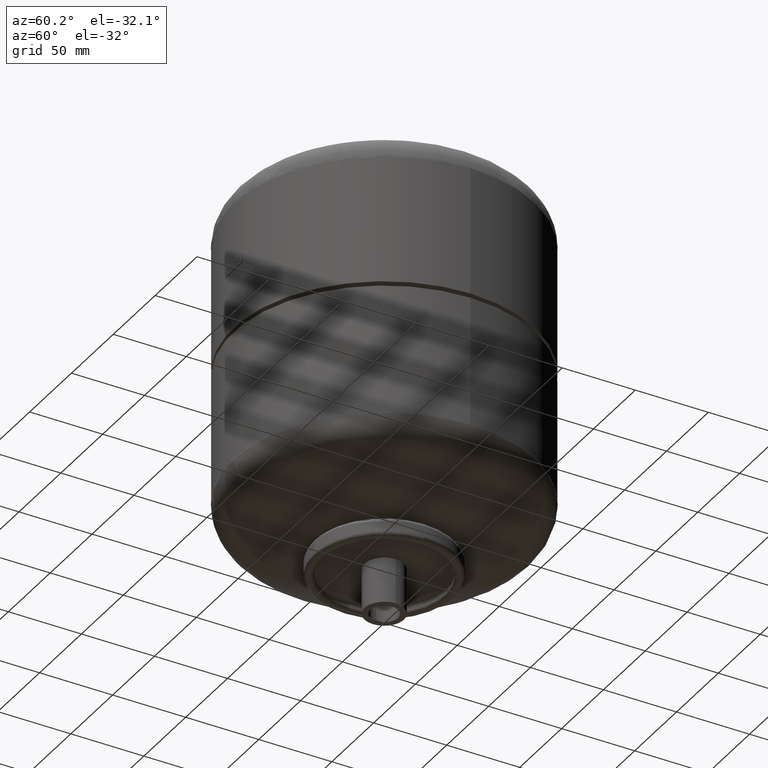
[diagram: clean part render]
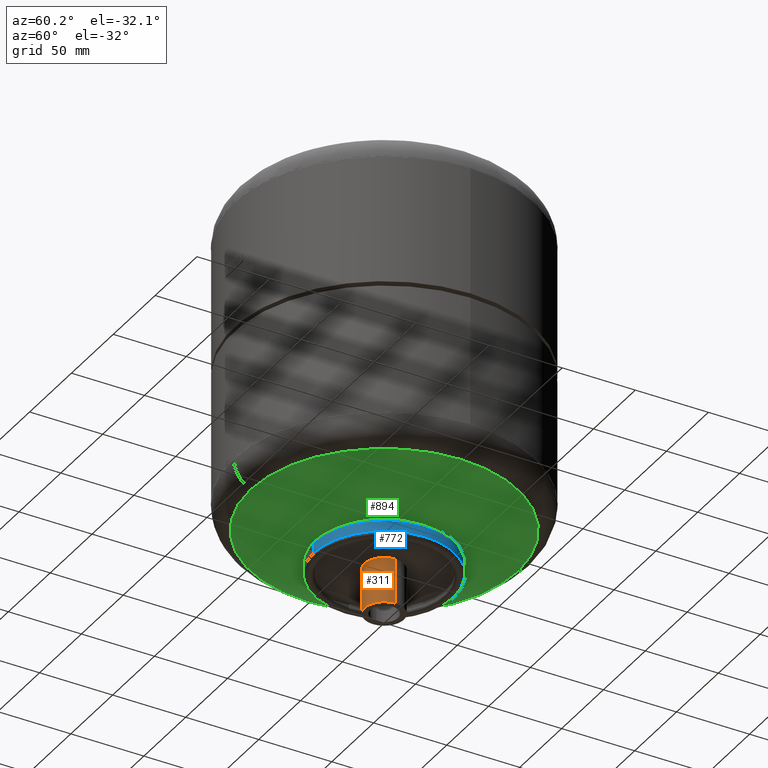
[diagram: same view with three faces highlighted in distinct colors, each labeled with its STEP entity id]
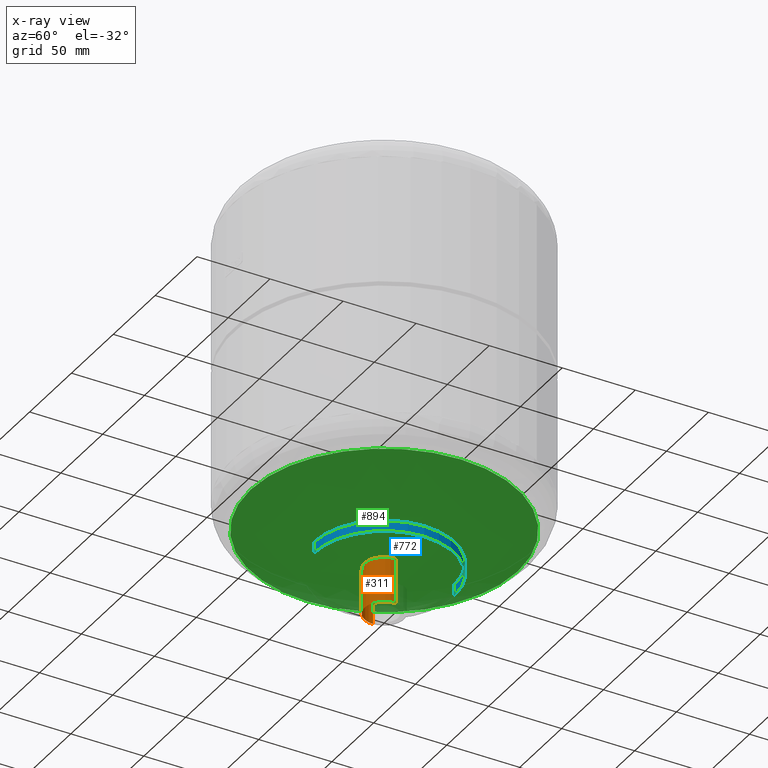
[diagram: x-ray of the same camera — body ghosted, the three highlighted faces saturated]
A machine part, auxiliary view with three faces highlighted in distinct colors.
The next image is the same camera in x-ray (body ghosted, the three faces saturated) — at least one of them is partly hidden behind the body in this view.
Their STEP definitions:

[orange] entity #311 — the highlighted cylindrical surface (edge-blend (fillet) strip) has radius 13.45 mm, axis along (0, 0, 1).
#270=CARTESIAN_POINT('',(0.0,0.0,0.0));
#271=DIRECTION('',(0.0,0.0,1.0));
#272=DIRECTION('',(1.0,0.0,0.0));
#273=AXIS2_PLACEMENT_3D('',#270,#271,#272);
#274=CYLINDRICAL_SURFACE('',#273,13.449999999999999);
#275=CARTESIAN_POINT('',(13.449999999999999,0.0,30.999999999999989));
#276=VERTEX_POINT('',#275);
#277=CARTESIAN_POINT('',(13.449999999999999,0.0,0.0));
#278=VERTEX_POINT('',#277);
#279=CARTESIAN_POINT('',(13.449999999999999,0.0,30.999999999999989));
#280=DIRECTION('',(0.0,0.0,-1.0));
#281=VECTOR('',#280,30.999999999999989);
#282=LINE('',#279,#281);
#283=EDGE_CURVE('',#276,#278,#282,.T.);
#284=ORIENTED_EDGE('',*,*,#283,.F.);
#285=CARTESIAN_POINT('',(-13.449999999999999,1.647096E-015,30.999999999999993));
#286=VERTEX_POINT('',#285);
#287=CARTESIAN_POINT('',(0.0,0.0,30.999999999999993));
#288=DIRECTION('',(0.0,0.0,-1.0));
#289=DIRECTION('',(1.0,0.0,0.0));
#290=AXIS2_PLACEMENT_3D('',#287,#288,#289);
#291=CIRCLE('',#290,13.449999999999999);
#292=EDGE_CURVE('',#276,#286,#291,.T.);
#293=ORIENTED_EDGE('',*,*,#292,.T.);
#294=CARTESIAN_POINT('',(-13.449999999999999,-1.647096E-015,0.0));
#295=VERTEX_POINT('',#294);
#296=CARTESIAN_POINT('',(-13.449999999999999,1.647096E-015,30.999999999999993));
#297=DIRECTION('',(0.0,0.0,-1.0));
#298=VECTOR('',#297,30.999999999999993);
#299=LINE('',#296,#298);
#300=EDGE_CURVE('',#286,#295,#299,.T.);
#301=ORIENTED_EDGE('',*,*,#300,.T.);
#302=CARTESIAN_POINT('',(0.0,0.0,0.0));
#303=DIRECTION('',(0.0,0.0,1.0));
#304=DIRECTION('',(1.0,0.0,0.0));
#305=AXIS2_PLACEMENT_3D('',#302,#303,#304);
#306=CIRCLE('',#305,13.449999999999999);
#307=EDGE_CURVE('',#295,#278,#306,.T.);
#308=ORIENTED_EDGE('',*,*,#307,.T.);
#309=EDGE_LOOP('',(#284,#293,#301,#308));
#310=FACE_OUTER_BOUND('',#309,.T.);
#311=ADVANCED_FACE('',(#310),#274,.T.);

[blue] entity #772 — the highlighted cylindrical surface (partial cylindrical patch) has radius 48 mm, axis along (0, -0, -1).
#130=CARTESIAN_POINT('',(0.0,48.0,27.999999999999993));
#131=VERTEX_POINT('',#130);
#132=CARTESIAN_POINT('',(0.0,48.0,35.000000000000007));
#133=VERTEX_POINT('',#132);
#134=CARTESIAN_POINT('',(0.0,48.0,27.999999999999993));
#135=DIRECTION('',(0.0,0.0,1.0));
#136=VECTOR('',#135,7.000000000000014);
#137=LINE('',#134,#136);
#138=EDGE_CURVE('',#131,#133,#137,.T.);
#149=CARTESIAN_POINT('',(-5.878110E-015,-48.000000000000007,28.0));
#150=VERTEX_POINT('',#149);
#158=CARTESIAN_POINT('',(-5.878110E-015,-48.000000000000007,35.000000000000014));
#159=VERTEX_POINT('',#158);
#160=CARTESIAN_POINT('',(-5.878110E-015,-48.000000000000007,28.0));
#161=DIRECTION('',(0.0,0.0,1.0));
#162=VECTOR('',#161,7.000000000000014);
#163=LINE('',#160,#162);
#164=EDGE_CURVE('',#150,#159,#163,.T.);
#242=CARTESIAN_POINT('',(48.000000000000007,-5.878110E-015,35.000000000000007));
#243=VERTEX_POINT('',#242);
#244=CARTESIAN_POINT('',(0.0,0.0,35.000000000000007));
#245=DIRECTION('',(0.0,0.0,-1.0));
#246=DIRECTION('',(0.0,1.0,0.0));
#247=AXIS2_PLACEMENT_3D('',#244,#245,#246);
#248=CIRCLE('',#247,48.000000000000007);
#249=EDGE_CURVE('',#243,#159,#248,.T.);
#483=CARTESIAN_POINT('',(48.000000000000007,-5.878110E-015,28.0));
#484=VERTEX_POINT('',#483);
#492=CARTESIAN_POINT('',(0.0,0.0,28.0));
#493=DIRECTION('',(0.0,0.0,-1.0));
#494=DIRECTION('',(0.0,1.0,0.0));
#495=AXIS2_PLACEMENT_3D('',#492,#493,#494);
#496=CIRCLE('',#495,48.000000000000007);
#497=EDGE_CURVE('',#484,#150,#496,.T.);
#553=CARTESIAN_POINT('',(0.0,0.0,28.0));
#554=DIRECTION('',(0.0,0.0,-1.0));
#555=DIRECTION('',(0.0,1.0,0.0));
#556=AXIS2_PLACEMENT_3D('',#553,#554,#555);
#557=CIRCLE('',#556,48.000000000000007);
#558=EDGE_CURVE('',#131,#484,#557,.T.);
#720=CARTESIAN_POINT('',(0.0,0.0,35.000000000000007));
#721=DIRECTION('',(0.0,0.0,-1.0));
#722=DIRECTION('',(0.0,1.0,0.0));
#723=AXIS2_PLACEMENT_3D('',#720,#721,#722);
#724=CIRCLE('',#723,48.000000000000007);
#725=EDGE_CURVE('',#133,#243,#724,.T.);
#759=CARTESIAN_POINT('',(0.0,0.0,32.0));
#760=DIRECTION('',(0.0,-1.045403E-016,-1.0));
#761=DIRECTION('',(0.0,1.0,0.0));
#762=AXIS2_PLACEMENT_3D('',#759,#760,#761);
#763=CYLINDRICAL_SURFACE('',#762,48.000000000000007);
#764=ORIENTED_EDGE('',*,*,#138,.T.);
#765=ORIENTED_EDGE('',*,*,#725,.T.);
#766=ORIENTED_EDGE('',*,*,#249,.T.);
#767=ORIENTED_EDGE('',*,*,#164,.F.);
#768=ORIENTED_EDGE('',*,*,#497,.F.);
#769=ORIENTED_EDGE('',*,*,#558,.F.);
#770=EDGE_LOOP('',(#764,#765,#766,#767,#768,#769));
#771=FACE_OUTER_BOUND('',#770,.T.);
#772=ADVANCED_FACE('',(#771),#763,.T.);

[green] entity #894 — the highlighted spherical surface has radius 207 mm.
#833=CARTESIAN_POINT('',(0.0,-91.568364611260066,58.354545968883677));
#834=VERTEX_POINT('',#833);
#850=CARTESIAN_POINT('',(-1.121352E-014,91.568364611260066,58.354545968883691));
#851=VERTEX_POINT('',#850);
#859=CARTESIAN_POINT('',(-91.568364611260066,3.425114E-015,58.354545968883684));
#860=VERTEX_POINT('',#859);
#861=CARTESIAN_POINT('',(0.0,3.425114E-015,58.354545968883684));
#862=DIRECTION('',(0.0,0.0,1.0));
#863=DIRECTION('',(-1.0,0.0,0.0));
#864=AXIS2_PLACEMENT_3D('',#861,#862,#863);
#865=CIRCLE('',#864,91.568364611260066);
#866=EDGE_CURVE('',#851,#860,#865,.T.);
#868=CARTESIAN_POINT('',(0.0,3.425114E-015,58.354545968883684));
#869=DIRECTION('',(0.0,0.0,1.0));
#870=DIRECTION('',(-1.0,0.0,0.0));
#871=AXIS2_PLACEMENT_3D('',#868,#869,#870);
#872=CIRCLE('',#871,91.568364611260066);
#873=EDGE_CURVE('',#860,#834,#872,.T.);
#878=CARTESIAN_POINT('',(-2.660593E-014,-3.067740E-014,244.000000000000090));
#879=DIRECTION('',(0.0,-1.0,0.0));
#880=DIRECTION('',(1.0,0.0,0.0));
#881=AXIS2_PLACEMENT_3D('',#878,#879,#880);
#882=SPHERICAL_SURFACE('',#881,207.000000000000060);
#883=ORIENTED_EDGE('',*,*,#873,.F.);
#884=ORIENTED_EDGE('',*,*,#866,.F.);
#885=CARTESIAN_POINT('',(0.0,3.425114E-015,58.354545968883684));
#886=DIRECTION('',(0.0,0.0,1.0));
#887=DIRECTION('',(-1.0,0.0,0.0));
#888=AXIS2_PLACEMENT_3D('',#885,#886,#887);
#889=CIRCLE('',#888,91.568364611260066);
#890=EDGE_CURVE('',#834,#851,#889,.T.);
#891=ORIENTED_EDGE('',*,*,#890,.F.);
#892=EDGE_LOOP('',(#883,#884,#891));
#893=FACE_OUTER_BOUND('',#892,.T.);
#894=ADVANCED_FACE('',(#893),#882,.T.);